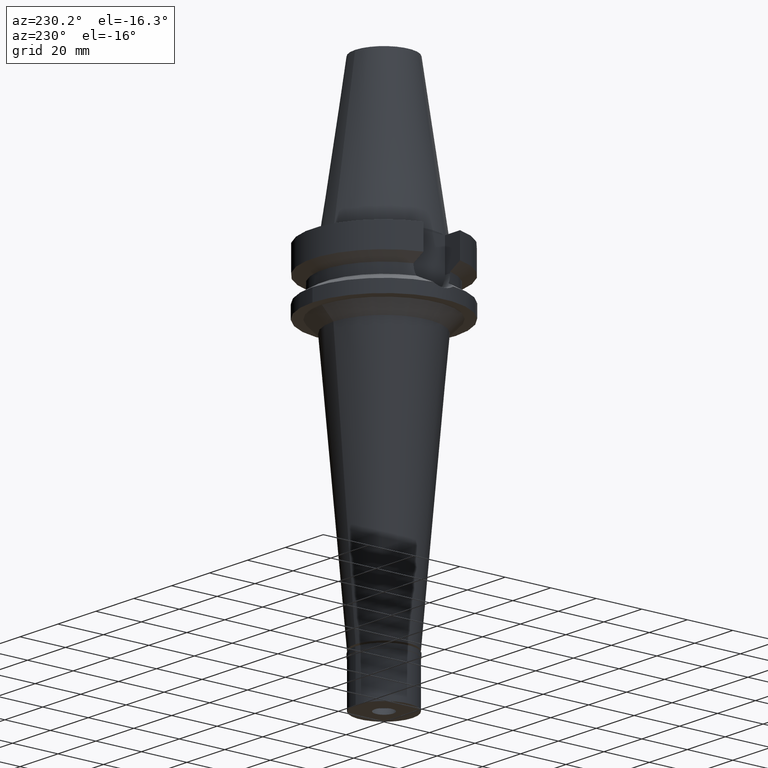
[diagram: clean part render]
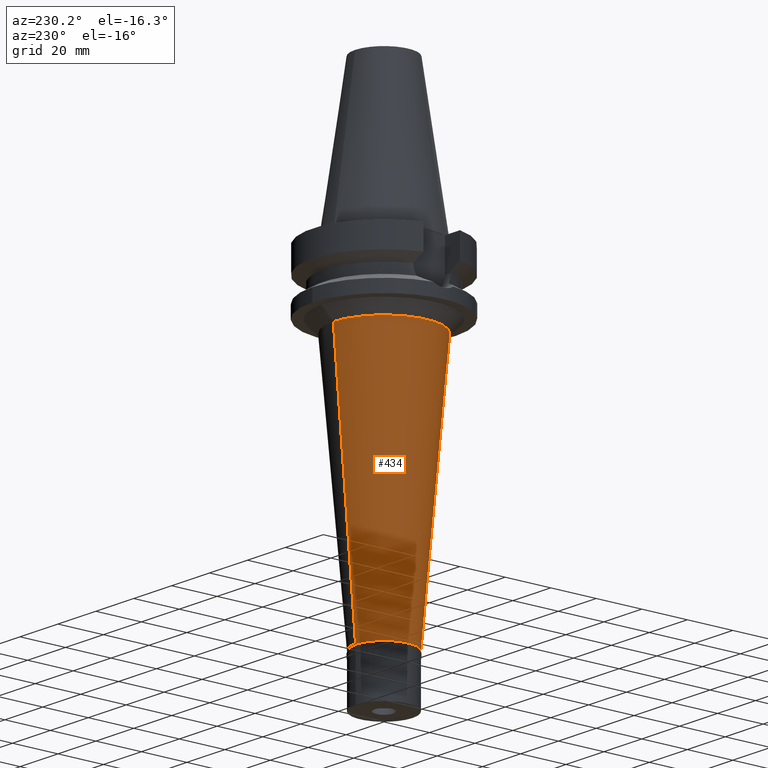
[diagram: same view with one face highlighted and labeled with its STEP entity id]
A machine part, auxiliary view. The second image highlights one B-rep face of the part: STEP entity #434.
In plain terms, the highlighted conical surface has half-angle 5 deg.
Its self-contained STEP definition (entity closure, byte-faithful):
#26 = ORIENTED_EDGE ( 'NONE', *, *, #433, .T. ) ;
#117 = CIRCLE ( 'NONE', #1391, 22.27248371585000086 ) ;
#168 = AXIS2_PLACEMENT_3D ( 'NONE', #1685, #1898, #2157 ) ;
#264 = ORIENTED_EDGE ( 'NONE', *, *, #501, .T. ) ;
#309 = AXIS2_PLACEMENT_3D ( 'NONE', #950, #1520, #1729 ) ;
#433 = EDGE_CURVE ( 'NONE', #1133, #2590, #1739, .T. ) ;
#434 = ADVANCED_FACE ( 'NONE', ( #3121 ), #771, .T. ) ;
#460 = CARTESIAN_POINT ( 'NONE',  ( 0.0000000000000000000, -22.27248371585000086, -32.00000000000000000 ) ) ;
#495 = CARTESIAN_POINT ( 'NONE',  ( 0.0000000000000000000, 22.27248371585000086, -32.00000000000000000 ) ) ;
#501 = EDGE_CURVE ( 'NONE', #2070, #1133, #1509, .T. ) ;
#514 = CARTESIAN_POINT ( 'NONE',  ( 0.0000000000000000000, -22.27248371585000086, -32.00000000000000000 ) ) ;
#518 = VECTOR ( 'NONE', #2232, 1000.000000000000227 ) ;
#771 = CONICAL_SURFACE ( 'NONE', #309, 17.38624185792000176, 0.08726646259969973729 ) ;
#875 = DIRECTION ( 'NONE',  ( 0.0000000000000000000, -1.000000000000000000, 0.0000000000000000000 ) ) ;
#950 = CARTESIAN_POINT ( 'NONE',  ( 0.0000000000000000000, 0.0000000000000000000, -87.84999999999999432 ) ) ;
#1133 = VERTEX_POINT ( 'NONE', #1984 ) ;
#1162 = VERTEX_POINT ( 'NONE', #514 ) ;
#1255 = DIRECTION ( 'NONE',  ( 0.0000000000000000000, 0.0000000000000000000, -1.000000000000000000 ) ) ;
#1391 = AXIS2_PLACEMENT_3D ( 'NONE', #3059, #1255, #875 ) ;
#1395 = CARTESIAN_POINT ( 'NONE',  ( 0.0000000000000000000, -12.50000000000000000, -143.6999999999999886 ) ) ;
#1423 = EDGE_CURVE ( 'NONE', #1162, #2070, #117, .T. ) ;
#1488 = DIRECTION ( 'NONE',  ( 0.0000000000000000000, -0.08715574274768382590, -0.9961946980917432137 ) ) ;
#1509 = LINE ( 'NONE', #495, #2162 ) ;
#1520 = DIRECTION ( 'NONE',  ( 0.0000000000000000000, 0.0000000000000000000, 1.000000000000000000 ) ) ;
#1609 = EDGE_CURVE ( 'NONE', #1162, #2590, #1710, .T. ) ;
#1685 = CARTESIAN_POINT ( 'NONE',  ( 0.0000000000000000000, 0.0000000000000000000, -143.6999999999999886 ) ) ;
#1710 = LINE ( 'NONE', #460, #518 ) ;
#1729 = DIRECTION ( 'NONE',  ( 0.0000000000000000000, 1.000000000000000000, 0.0000000000000000000 ) ) ;
#1739 = CIRCLE ( 'NONE', #168, 12.50000000000000000 ) ;
#1866 = EDGE_LOOP ( 'NONE', ( #26, #2478, #1886, #264 ) ) ;
#1886 = ORIENTED_EDGE ( 'NONE', *, *, #1423, .T. ) ;
#1898 = DIRECTION ( 'NONE',  ( 0.0000000000000000000, 0.0000000000000000000, 1.000000000000000000 ) ) ;
#1984 = CARTESIAN_POINT ( 'NONE',  ( 0.0000000000000000000, 12.50000000000000000, -143.6999999999999886 ) ) ;
#2070 = VERTEX_POINT ( 'NONE', #2111 ) ;
#2111 = CARTESIAN_POINT ( 'NONE',  ( 0.0000000000000000000, 22.27248371585000086, -32.00000000000000000 ) ) ;
#2157 = DIRECTION ( 'NONE',  ( 0.0000000000000000000, 1.000000000000000000, 0.0000000000000000000 ) ) ;
#2162 = VECTOR ( 'NONE', #1488, 1000.000000000000227 ) ;
#2232 = DIRECTION ( 'NONE',  ( 0.0000000000000000000, 0.08715574274768382590, -0.9961946980917432137 ) ) ;
#2478 = ORIENTED_EDGE ( 'NONE', *, *, #1609, .F. ) ;
#2590 = VERTEX_POINT ( 'NONE', #1395 ) ;
#3059 = CARTESIAN_POINT ( 'NONE',  ( 0.0000000000000000000, 0.0000000000000000000, -32.00000000000000000 ) ) ;
#3121 = FACE_OUTER_BOUND ( 'NONE', #1866, .T. ) ;